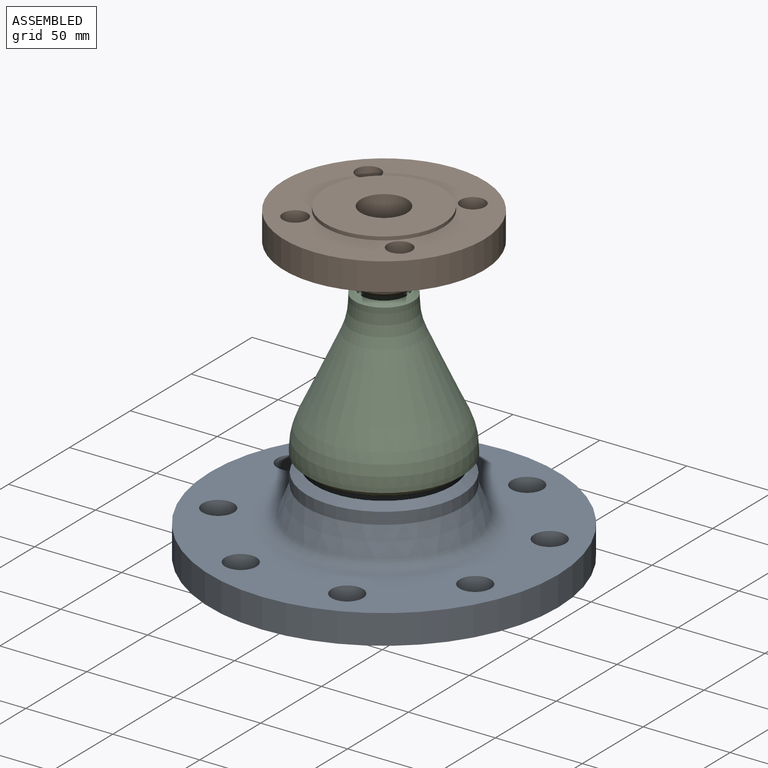
[diagram: assembled view]
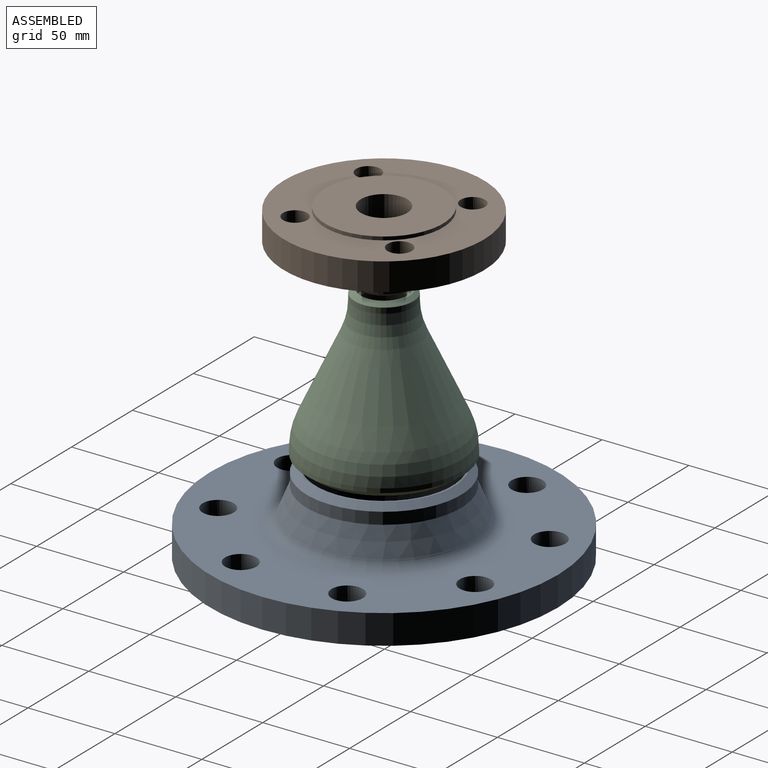
[diagram: assembled view, second angle]
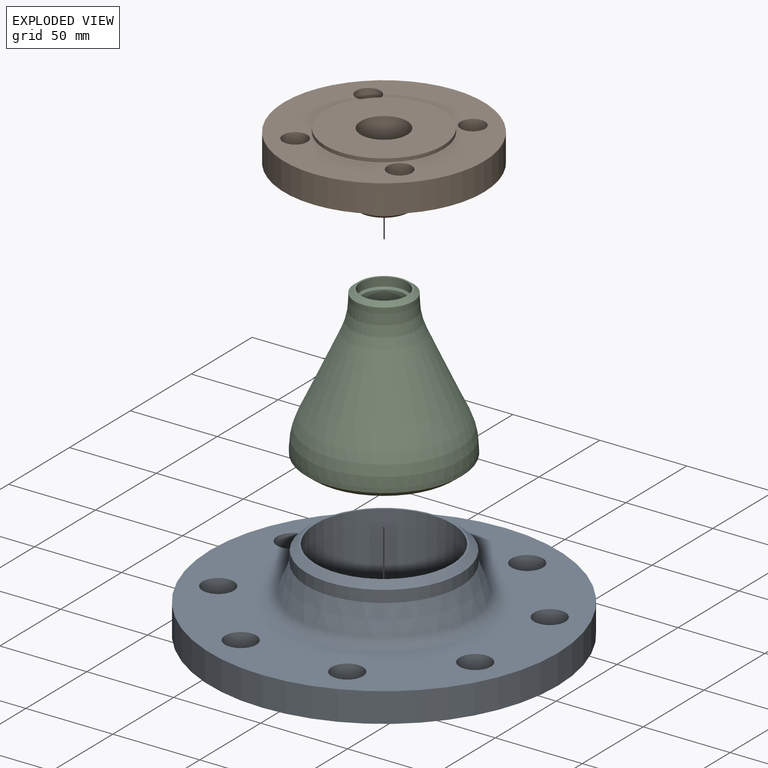
[diagram: exploded view]
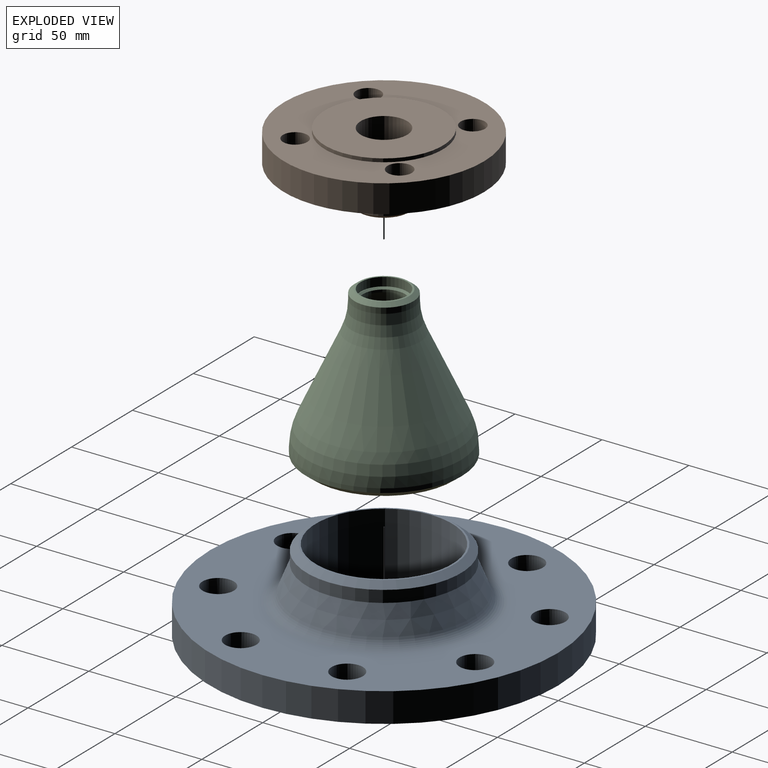
[diagram: exploded view, second angle]
ASSEMBLY  parts=3 mates=2
PART A: 20 faces, bbox 200x200x50 mm
  f0: plane 80.5x80.5mm, normal (0,0,1), area 249.8mm2, adj f1,f17
  f1: cylinder r=39.25mm len=78.5mm, axis (0,0,1), area 12330.8mm2, adj f0,f2
  f2: plane 138x138mm, normal (0,0,-1), area 10117.3mm2, adj f1,f3
  f3: cylinder r=69mm len=138mm, axis (0,0,1), area 1300.6mm2, adj f2,f4
  f4: plane 200x200mm, normal (0,0,-1), area 14423.1mm2, adj f3,f5,f9,f10,f11,f12,f13,f14
  f5: cylinder r=100mm len=200mm, axis (0,0,1), area 10681.4mm2, adj f4,f6
  f6: plane 200x200mm, normal (0,0,1), area 18846.9mm2, adj f5,f9,f10,f11,f12,f13,f14,f15
  f7: cone r=52.5mm half-angle=21.9deg, axis (0,0,-1), area 4818.2mm2, adj f8,f19
  f8: cylinder r=44.45mm len=88.9mm, axis (0,0,1), area 1892.5mm2, adj f7,f18
  f9: cylinder r=9mm len=18mm, axis (0,0,1), area 961.3mm2, adj f4,f6
  f10: cylinder r=9mm len=18mm, axis (0,0,1), area 961.3mm2, adj f4,f6
  f11: cylinder r=9mm len=18mm, axis (0,0,1), area 961.3mm2, adj f4,f6
  f12: cylinder r=9mm len=18mm, axis (0,0,1), area 961.3mm2, adj f4,f6
  f13: cylinder r=9mm len=18mm, axis (0,0,1), area 961.3mm2, adj f4,f6
  f14: cylinder r=9mm len=18mm, axis (0,0,1), area 961.3mm2, adj f4,f6
  f15: cylinder r=9mm len=18mm, axis (0,0,1), area 961.3mm2, adj f4,f6
  f16: cylinder r=9mm len=18mm, axis (0,0,1), area 961.3mm2, adj f4,f6
  f17: cylinder r=40.25mm len=80.5mm, axis (0,0,-1), area 0.3mm2, adj f0,f18
  f18: cone r=40.25mm half-angle=52.5deg, axis (0,0,-1), area 1408.7mm2, adj f8,f17
  f19: torus R=57.9mm, axis (0,0,-1), area 3206.2mm2, adj f6,f7
PART B: 16 faces, bbox 115x115x40 mm
  f0: plane 28.7x28.7mm, normal (0,0,1), area 87mm2, adj f1,f13
  f1: cylinder r=13.35mm len=40mm, axis (0,0,1), area 3355.2mm2, adj f0,f2
  f2: plane 68x68mm, normal (0,0,-1), area 3071.8mm2, adj f1,f3
  f3: cylinder r=34mm len=68mm, axis (0,0,1), area 427.3mm2, adj f2,f4
  f4: plane 115x115mm, normal (0,0,-1), area 6139.5mm2, adj f3,f5,f9,f10,f11,f12
  f5: cylinder r=57.5mm len=115mm, axis (0,0,1), area 5780.5mm2, adj f4,f6
  f6: plane 115x115mm, normal (0,0,1), area 7688.4mm2, adj f5,f9,f10,f11,f12,f15
  f7: cone r=23mm half-angle=21deg, axis (0,0,-1), area 1757.4mm2, adj f8,f15
  f8: cylinder r=16.85mm len=33.7mm, axis (0,0,1), area 432mm2, adj f7,f14
  f9: cylinder r=7mm len=16mm, axis (0,0,1), area 703.7mm2, adj f4,f6
  f10: cylinder r=7mm len=16mm, axis (0,0,1), area 703.7mm2, adj f4,f6
  f11: cylinder r=7mm len=16mm, axis (0,0,1), area 703.7mm2, adj f4,f6
  f12: cylinder r=7mm len=16mm, axis (0,0,1), area 703.7mm2, adj f4,f6
  f13: cylinder r=14.35mm len=28.7mm, axis (0,0,-1), area 0.1mm2, adj f0,f14
  f14: cone r=14.35mm half-angle=52.5deg, axis (0,0,-1), area 308.9mm2, adj f8,f13
  f15: torus R=25.75mm, axis (0,0,-1), area 714.6mm2, adj f6,f7
PART C: 18 faces, bbox 110x89.7x89.7 mm
  f0: cylinder r=44.85mm len=89.7mm, axis (-1,0,0), area 689.9mm2, adj f3,f13
  f1: cone r=44.85mm half-angle=25deg, axis (1,0,0), area 9389.2mm2, adj f13,f14
  f2: cylinder r=16.9mm len=33.8mm, axis (-1,0,0), area 343.7mm2, adj f5,f14
  f3: cone r=40.05mm half-angle=52.5deg, axis (-1,0,0), area 1613.7mm2, adj f0,f4
  f4: cylinder r=40.05mm len=80.1mm, axis (1,0,0), area 0.3mm2, adj f3,f7
  f5: cone r=16.9mm half-angle=52.5deg, axis (1,0,0), area 315.6mm2, adj f2,f12
  f6: cylinder r=39.05mm len=78.1mm, axis (-1,0,0), area 1479.4mm2, adj f7,f16
  f7: plane 80.1x80.1mm, normal (1,0,0), area 248.5mm2, adj f4,f6
  f8: cone r=39.05mm half-angle=25deg, axis (1,0,0), area 7397.2mm2, adj f15,f16
  f9: cylinder r=12.1mm len=24.2mm, axis (-1,0,0), area 109.5mm2, adj f15,f17
  f10: cylinder r=13.35mm len=26.7mm, axis (1,0,0), area 419.4mm2, adj f11,f12
  f11: plane 26.7x26.7mm, normal (-1,0,0), area 20.8mm2, adj f10,f17
  f12: plane 28.7x28.7mm, normal (-1,0,0), area 87mm2, adj f5,f10
  f13: torus R=4.85mm, axis (1,0,0), area 4780.5mm2, adj f0,f1
  f14: torus R=56.9mm, axis (-1,0,0), area 1991.2mm2, adj f1,f2
  f15: torus R=52.1mm, axis (1,0,0), area 1464.8mm2, adj f8,f9
  f16: revolved ~78.1x78.1mm, area 4144.4mm2, adj f6,f8
  f17: cone r=13.1mm half-angle=45deg, axis (-1,0,0), area 112mm2, adj f9,f11
PLACE A t=(0.75,0.29,-29.22)mm fixed
PLACE B rot(axis=(0,1,0),180deg) t=(0.75,0.29,155.78)mm
PLACE C rot(axis=(0.58,0.58,-0.58),120deg) t=(0.75,0.29,112.78)mm
MATE fastened B.f1 <-> C.f0  axis (0,0,1) through (0.75,0.29,115.78)mm
MATE fastened C.f0 <-> A.f1  axis (0,0,1) through (0.75,0.29,23.78)mm
